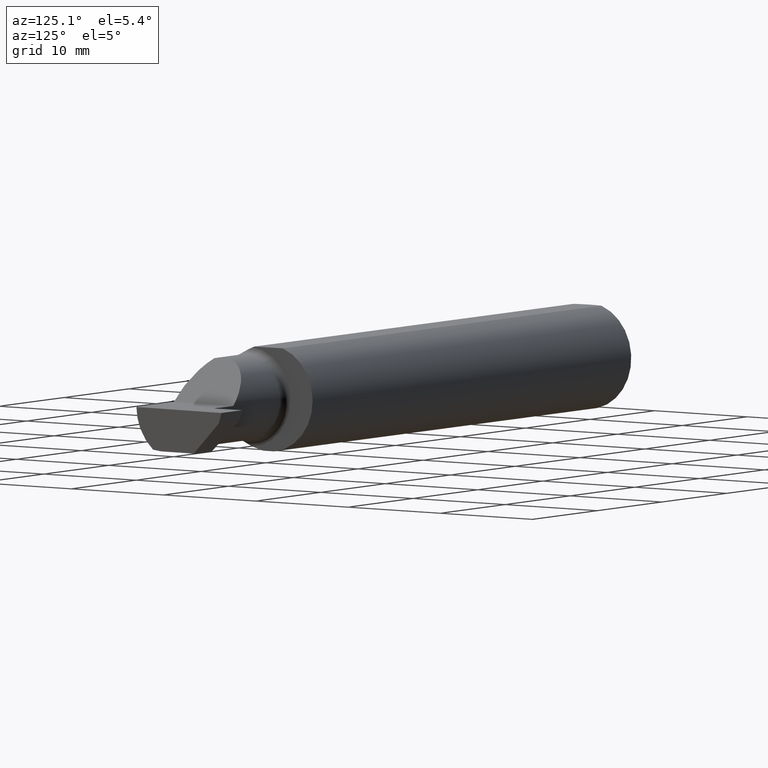
[diagram: clean part render]
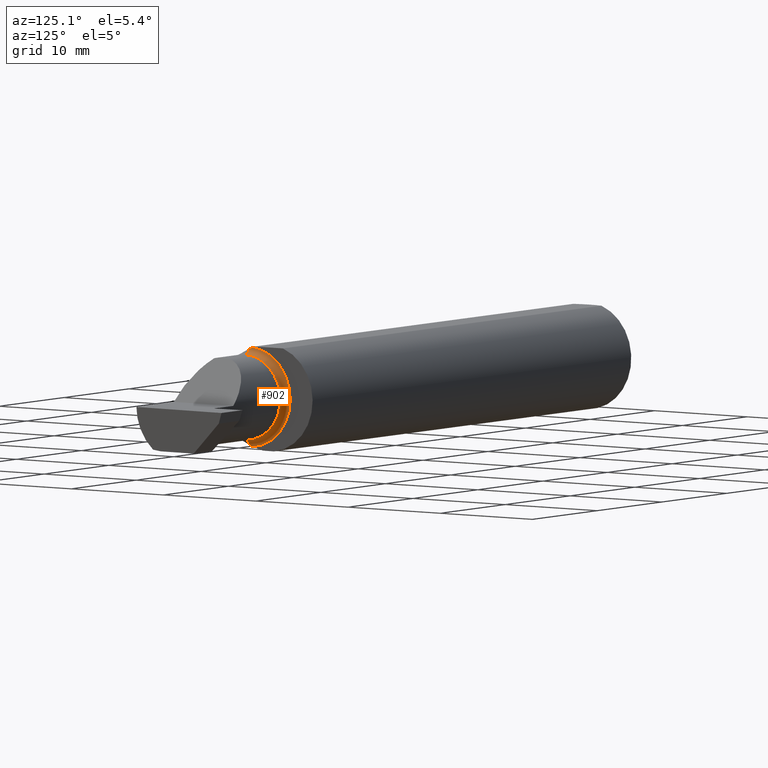
[diagram: same view with one face highlighted and labeled with its STEP entity id]
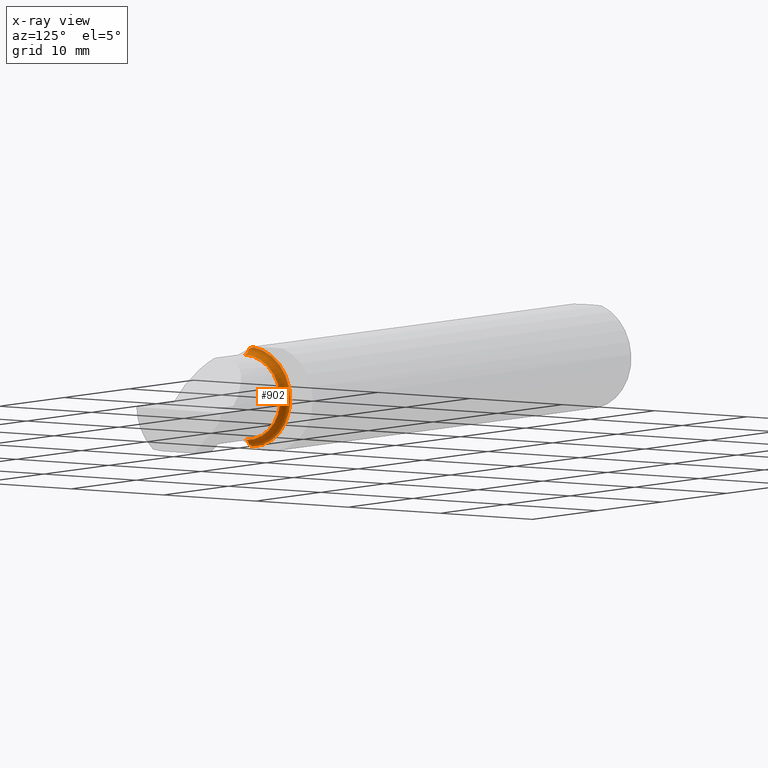
[diagram: x-ray of the same camera — body ghosted, the highlighted face saturated]
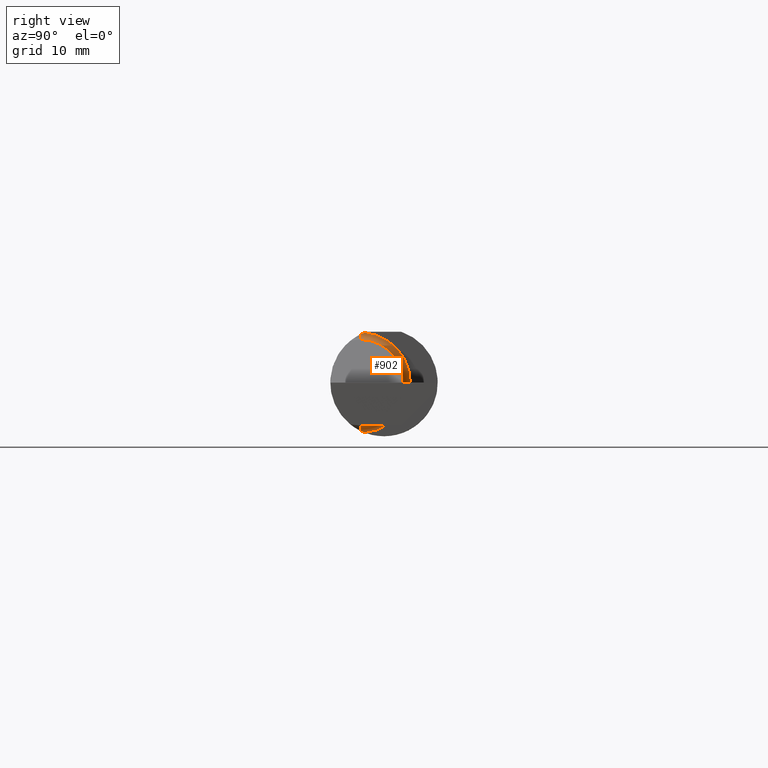
[diagram: same view with one face highlighted and labeled with its STEP entity id]
A machine part, auxiliary view. The second image highlights one B-rep face of the part: STEP entity #902.
The next image is the same camera in x-ray: the body ghosted, the highlighted face saturated — about 0% of this face is hidden behind the body in this view.
A second angle (right view) of the same face is appended — the face is thin or edge-on in the first view.
In plain terms, the highlighted toroidal blend (fillet) surface has major radius 4.445 mm and minor (blend) radius 0.635 mm.
Its self-contained STEP definition (entity closure, byte-faithful):
#1 = AXIS2_PLACEMENT_3D ( 'NONE', #673, #102, #32 ) ;
#15 = CARTESIAN_POINT ( 'NONE',  ( 1.949999999999999956, -0.06851976604679065053, 0.1743704796142198643 ) ) ;
#21 = CARTESIAN_POINT ( 'NONE',  ( 1.974999999999999867, -0.08334999999999996578, 0.000000000000000000 ) ) ;
#32 = DIRECTION ( 'NONE',  ( 0.000000000000000000, 0.000000000000000000, 1.000000000000000000 ) ) ;
#36 = B_SPLINE_CURVE_WITH_KNOTS ( 'NONE', 3,
 ( #710, #1019, #947, #467 ),
 .UNSPECIFIED., .F., .F.,
 ( 4, 4 ),
 ( 0.001278539404338873992, 0.001694873732696220705 ),
 .UNSPECIFIED. ) ;
#49 = VERTEX_POINT ( 'NONE', #15 ) ;
#59 = EDGE_LOOP ( 'NONE', ( #258, #79, #578, #214, #501, #670 ) ) ;
#73 = CARTESIAN_POINT ( 'NONE',  ( 1.974999999999999867, -0.08334999999999992415, -0.1749999999999999889 ) ) ;
#76 = CIRCLE ( 'NONE', #806, 0.02499999999999993894 ) ;
#78 = CARTESIAN_POINT ( 'NONE',  ( 1.949999999999999956, -0.06851976604679065053, -0.1743704796142198643 ) ) ;
#79 = ORIENTED_EDGE ( 'NONE', *, *, #870, .T. ) ;
#94 = CARTESIAN_POINT ( 'NONE',  ( 1.974999999999999867, -0.08334999999999995191, 0.1749999999999999889 ) ) ;
#102 = DIRECTION ( 'NONE',  ( -1.000000000000000000, -0.000000000000000000, -0.000000000000000000 ) ) ;
#117 = DIRECTION ( 'NONE',  ( 0.000000000000000000, 0.000000000000000000, -1.000000000000000000 ) ) ;
#148 = CARTESIAN_POINT ( 'NONE',  ( 1.951062863587533558, -0.08334999999998812803, 0.1677879614275171183 ) ) ;
#162 = CIRCLE ( 'NONE', #1, 0.1749999999999999889 ) ;
#214 = ORIENTED_EDGE ( 'NONE', *, *, #314, .T. ) ;
#258 = ORIENTED_EDGE ( 'NONE', *, *, #437, .F. ) ;
#277 = VERTEX_POINT ( 'NONE', #440 ) ;
#307 = AXIS2_PLACEMENT_3D ( 'NONE', #73, #647, #972 ) ;
#314 = EDGE_CURVE ( 'NONE', #49, #277, #843, .T. ) ;
#337 = DIRECTION ( 'NONE',  ( -1.000000000000000000, -0.000000000000000000, -0.000000000000000000 ) ) ;
#381 = CARTESIAN_POINT ( 'NONE',  ( 1.974999999999999867, -0.08334999999999995191, 0.000000000000000000 ) ) ;
#387 = VERTEX_POINT ( 'NONE', #78 ) ;
#393 = CIRCLE ( 'NONE', #307, 0.02499999999999993894 ) ;
#437 = EDGE_CURVE ( 'NONE', #1037, #964, #393, .T. ) ;
#440 = CARTESIAN_POINT ( 'NONE',  ( 1.951062863587533558, -0.08334999999998812803, 0.1677879614275171183 ) ) ;
#448 = FACE_OUTER_BOUND ( 'NONE', #59, .T. ) ;
#455 = EDGE_CURVE ( 'NONE', #277, #856, #76, .T. ) ;
#467 = CARTESIAN_POINT ( 'NONE',  ( 1.949999999999999956, -0.06851976604679065053, -0.1743704796142198643 ) ) ;
#501 = ORIENTED_EDGE ( 'NONE', *, *, #455, .T. ) ;
#520 = EDGE_CURVE ( 'NONE', #49, #387, #162, .T. ) ;
#529 = AXIS2_PLACEMENT_3D ( 'NONE', #21, #337, #921 ) ;
#563 = CARTESIAN_POINT ( 'NONE',  ( 1.950344683557281300, -0.07855153123406181936, 0.1701716388274757685 ) ) ;
#578 = ORIENTED_EDGE ( 'NONE', *, *, #520, .F. ) ;
#637 = CIRCLE ( 'NONE', #529, 0.1499999999999999944 ) ;
#647 = DIRECTION ( 'NONE',  ( -0.000000000000000000, 1.000000000000000000, 1.224646799147353207E-16 ) ) ;
#648 = EDGE_CURVE ( 'NONE', #856, #964, #637, .T. ) ;
#670 = ORIENTED_EDGE ( 'NONE', *, *, #648, .T. ) ;
#673 = CARTESIAN_POINT ( 'NONE',  ( 1.949999999999999956, -0.08334999999999996578, 0.000000000000000000 ) ) ;
#710 = CARTESIAN_POINT ( 'NONE',  ( 1.951062863587535334, -0.08334999999999989639, -0.1677879614275112619 ) ) ;
#713 = AXIS2_PLACEMENT_3D ( 'NONE', #381, #864, #872 ) ;
#731 = TOROIDAL_SURFACE ( 'NONE', #713, 0.1749999999999999889, 0.02499999999999993894 ) ;
#772 = CARTESIAN_POINT ( 'NONE',  ( 1.974999999999999867, -0.08334999999999996578, 0.1499999999999999944 ) ) ;
#806 = AXIS2_PLACEMENT_3D ( 'NONE', #94, #987, #117 ) ;
#843 = B_SPLINE_CURVE_WITH_KNOTS ( 'NONE', 3,
 ( #896, #963, #563, #148 ),
 .UNSPECIFIED., .F., .F.,
 ( 4, 4 ),
 ( 4.423516731080786679E-05, 0.0004561457252213465489 ),
 .UNSPECIFIED. ) ;
#856 = VERTEX_POINT ( 'NONE', #772 ) ;
#864 = DIRECTION ( 'NONE',  ( -1.000000000000000000, -0.000000000000000000, -0.000000000000000000 ) ) ;
#870 = EDGE_CURVE ( 'NONE', #1037, #387, #36, .T. ) ;
#872 = DIRECTION ( 'NONE',  ( 0.000000000000000000, 0.000000000000000000, 1.000000000000000000 ) ) ;
#896 = CARTESIAN_POINT ( 'NONE',  ( 1.949999999999999956, -0.06851976604679065053, 0.1743704796142198643 ) ) ;
#902 = ADVANCED_FACE ( 'NONE', ( #448 ), #731, .F. ) ;
#921 = DIRECTION ( 'NONE',  ( 0.000000000000000000, 0.000000000000000000, 1.000000000000000000 ) ) ;
#937 = CARTESIAN_POINT ( 'NONE',  ( 1.974999999999999867, -0.08334999999999995191, -0.1499999999999999944 ) ) ;
#947 = CARTESIAN_POINT ( 'NONE',  ( 1.949999999999999956, -0.07359296612170562746, -0.1723769398647691520 ) ) ;
#963 = CARTESIAN_POINT ( 'NONE',  ( 1.949999999999999512, -0.07360907839729495528, 0.1723706084642000758 ) ) ;
#964 = VERTEX_POINT ( 'NONE', #937 ) ;
#972 = DIRECTION ( 'NONE',  ( 0.000000000000000000, 0.000000000000000000, 1.000000000000000000 ) ) ;
#987 = DIRECTION ( 'NONE',  ( 0.000000000000000000, -1.000000000000000000, 0.000000000000000000 ) ) ;
#1016 = CARTESIAN_POINT ( 'NONE',  ( 1.951062863587535334, -0.08334999999999989639, -0.1677879614275112619 ) ) ;
#1019 = CARTESIAN_POINT ( 'NONE',  ( 1.950346246588685162, -0.07856197451716399882, -0.1701664510438046229 ) ) ;
#1037 = VERTEX_POINT ( 'NONE', #1016 ) ;